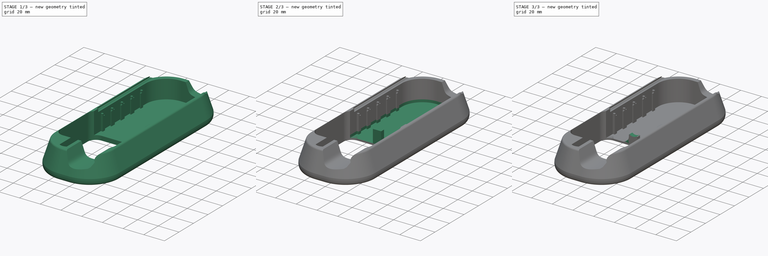
[diagram: build sequence overview — one tinted view per stage of 3, left to right]
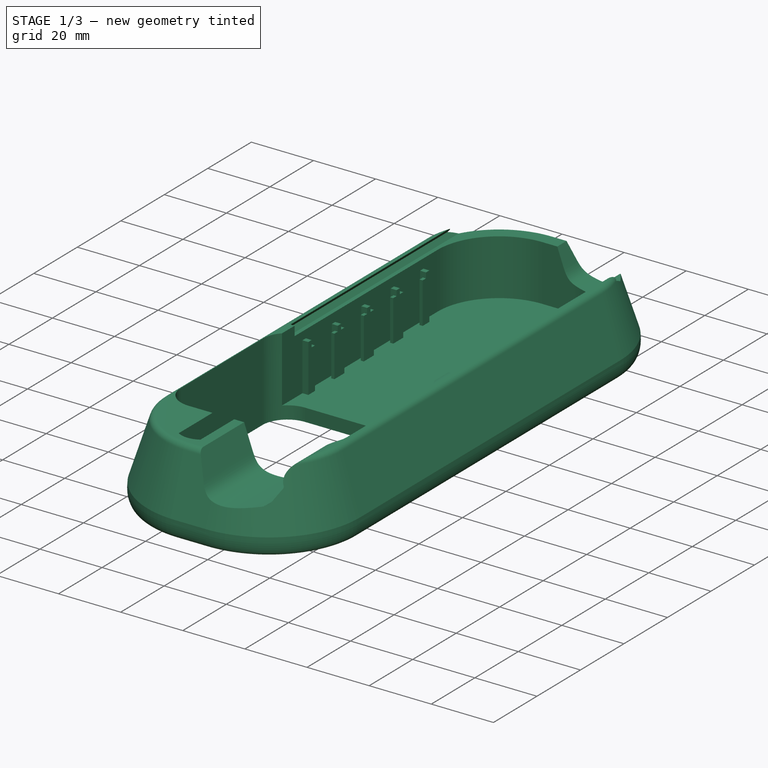
[diagram: stage 1 of 3 — iso view after this stage's code; geometry added in this stage tinted green]
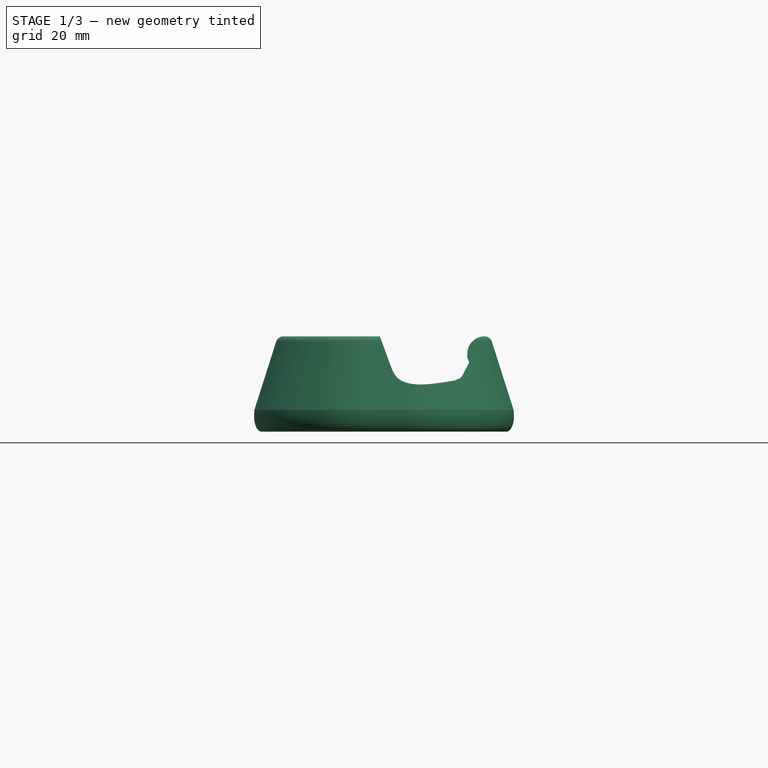
[diagram: stage 1 of 3 — front view after this stage's code; geometry added in this stage tinted green]
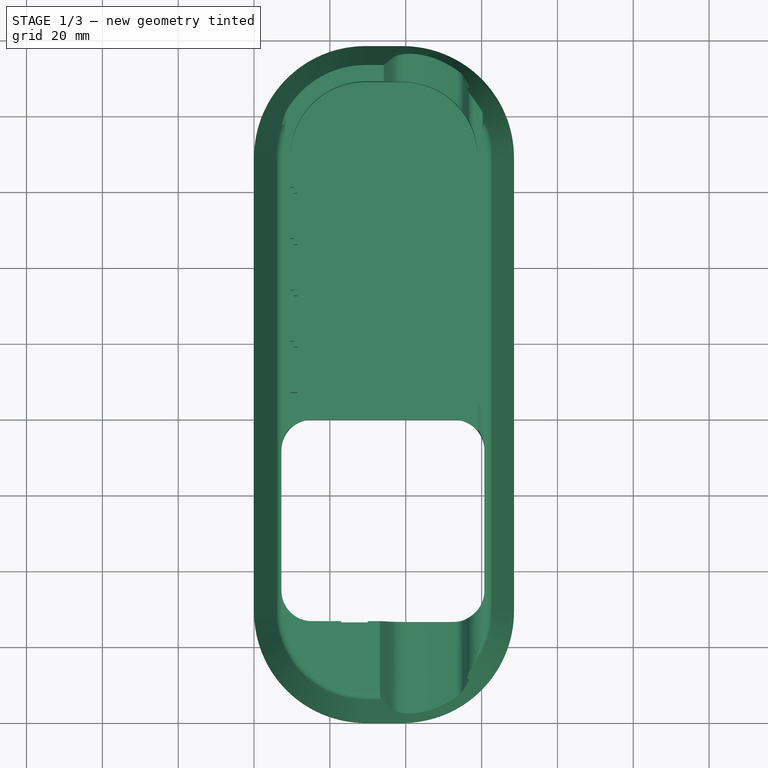
[diagram: stage 1 of 3 — top view after this stage's code; geometry added in this stage tinted green]
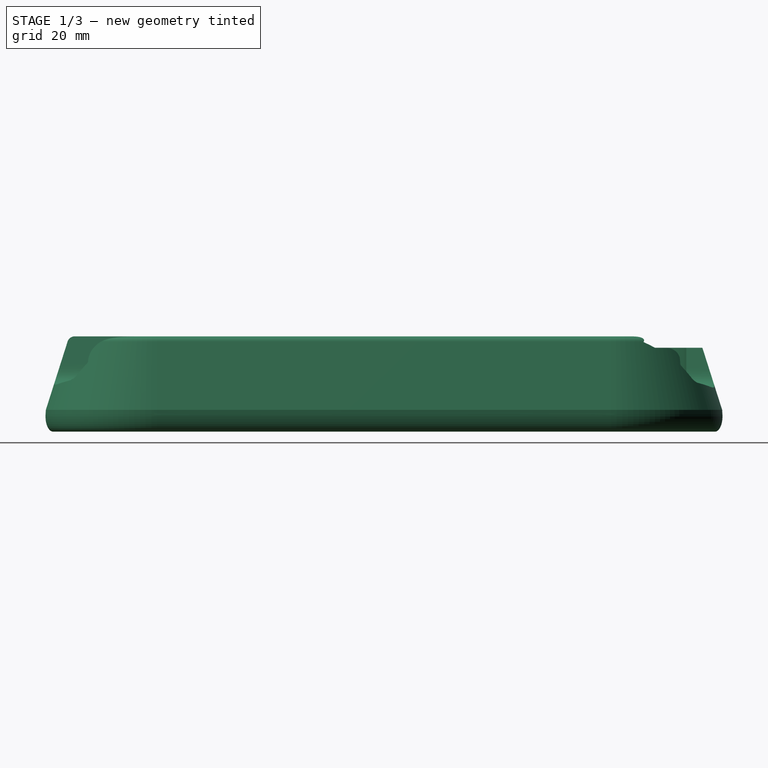
[diagram: stage 1 of 3 — right view after this stage's code; geometry added in this stage tinted green]
FCSTD DOCUMENT  (FreeCAD 0.20R29177 +233 (Git))
Label: steambox-xl-remix
License: All rights reserved
LicenseURL: http://en.wikipedia.org/wiki/All_rights_reserved
objects: Sketcher::SketchObject×3, PartDesign::Pocket×3, PartDesign::Pad×2, PartDesign::Fillet×2, Part::Feature×1, Part::Refine×1, PartDesign::FeatureBase×1, PartDesign::Plane×1, PartDesign::Body×1
note: 22 computed .brp shape members not serialized (recipe doc carries the construction recipe); baked Part::Feature solids carry a one-line shape summary decoded from their .brp

FEATURE [Part::Feature] steambox_stand_slightly_larger001_solid  label="steambox_stand_slightly_larger001 (Solid)"
  shape: bbox 68.53 x 178.5 x 25.15 mm, 7798 faces (baked)
FEATURE [Part::Refine] steambox_stand_slightly_larger001_solid001  label="steambox_stand_slightly_larger001 (Solid)001"
  Source = -> steambox_stand_slightly_larger001_solid
FEATURE [PartDesign::FeatureBase] BaseFeature
  BaseFeature = -> steambox_stand_slightly_larger001_solid001
FEATURE [PartDesign::Pad] Pad
  BaseFeature = -> BaseFeature
  Direction = (0,0,1)
  Length = 10
  Length2 = 10
  Profile = -> BaseFeature [Face3538]
  Type = 3
  UpToFace = -> BaseFeature [Face3429]
FEATURE [Sketcher::SketchObject] Sketch001
  ExternalGeometry = -> [Pad]
  FullyConstrained = true
  MapMode = 5
  Placement = pos=(0,0,22) rot=(0,0,1;0rad)
  Support = -> [Pad]
  sketch-geometry (7):
    g0: LineSegment StartX=30 StartY=26.5 StartZ=0 EndX=23 EndY=26.5 EndZ=0
    g1: LineSegment StartX=23 StartY=26.5 StartZ=0 EndX=23 EndY=11 EndZ=0
    g2: LineSegment StartX=23 StartY=11 StartZ=0 EndX=30 EndY=11 EndZ=0
    g3: LineSegment StartX=30 StartY=11 StartZ=0 EndX=30 EndY=26.5 EndZ=0
    g4: ArcOfCircle CenterX=26.5 CenterY=16.625 CenterZ=0 NormalX=0 NormalY=0 NormalZ=1 AngleXU=0 Radius=6.625 StartAngle=4.15579 EndAngle=5.26899
    g5: GeomPoint X=26.5 Y=11 Z=0
    g6: LineSegment StartX=26.5 StartY=11 StartZ=0 EndX=26.5 EndY=10 EndZ=0
  constraints (18):
    c: Coincident(g0,g1)
    c: Coincident(g1,g2)
    c: Coincident(g2,g3)
    c: Coincident(g3,g0)
    c: Horizontal(g0)
    c: Horizontal(g2)
    c: Vertical(g1)
    c: Vertical(g3)
    c: Coincident(g0,g-4)
    c: DistanceX(g2,g2) = 7
    c: Coincident(g4,g3)
    c: Coincident(g4,g1)
    c: Symmetric(g1,g3,g5)
    c: Coincident(g6,g5)
    c: PointOnObject(g6,g4)
    c: Vertical(g6)
    c: DistanceY(g1,g1) = 15.5
    c: DistanceY(g6,g6) = 1
FEATURE [PartDesign::Plane] DatumPlane
  Length = 121.124
  MapMode = 5
  Placement = pos=(0,0,4) rot=(0,0,1;0rad)
  ResizeMode = 0
  Support = -> [BaseFeature]
  Width = 231.124
FEATURE [PartDesign::Pocket] Pocket002
  BaseFeature = -> Pad
  Direction = (0,0,-1)
  Length = 0
  Length2 = 5
  Profile = -> Sketch001
  ReferenceAxis = -> Sketch001 [N_Axis]
  Type = 3
  UpToFace = -> DatumPlane
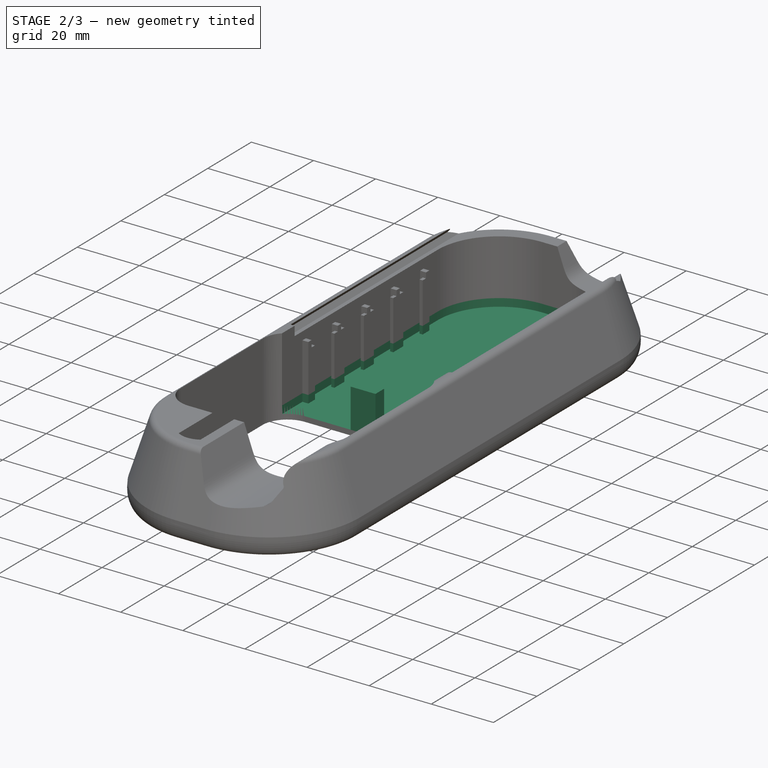
[diagram: stage 2 of 3 — iso view after this stage's code; geometry added in this stage tinted green]
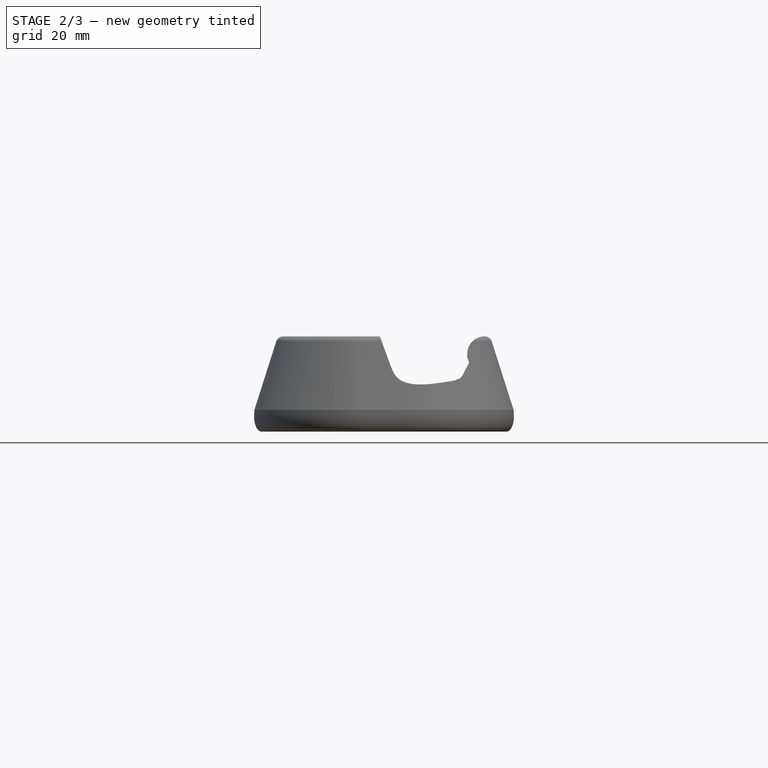
[diagram: stage 2 of 3 — front view after this stage's code; geometry added in this stage tinted green]
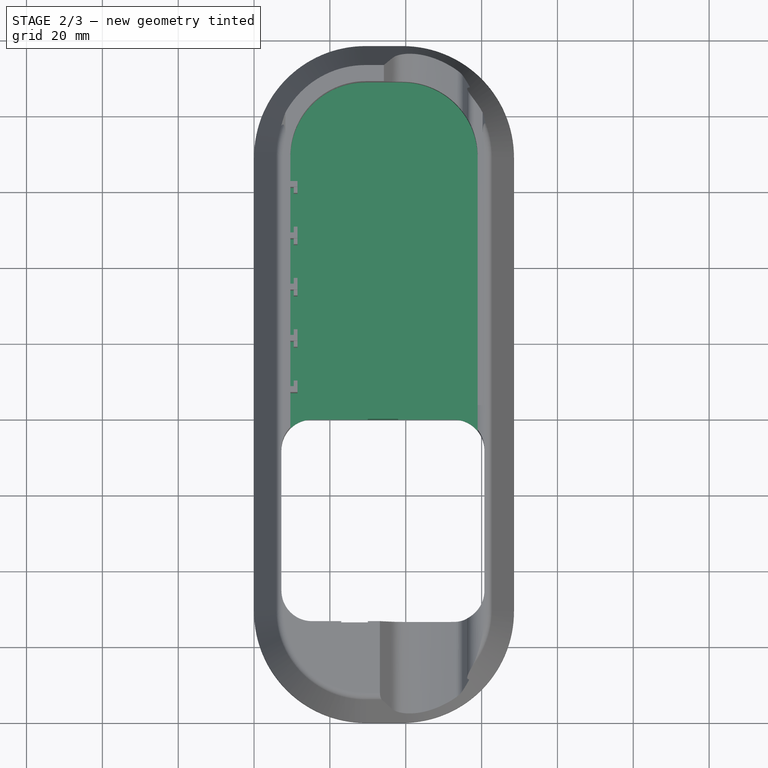
[diagram: stage 2 of 3 — top view after this stage's code; geometry added in this stage tinted green]
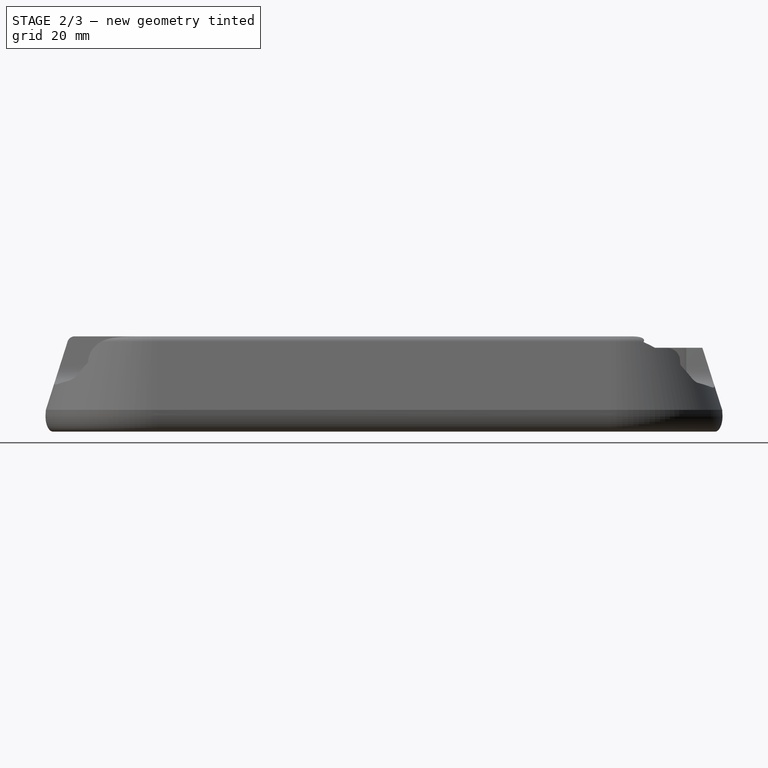
[diagram: stage 2 of 3 — right view after this stage's code; geometry added in this stage tinted green]
FEATURE [PartDesign::Pocket] Pocket
  BaseFeature = -> Pocket002
  Direction = (0,0,-1)
  Length = 2.5
  Length2 = 5
  Profile = -> Pocket002 [Face28]
  Type = 0
FEATURE [Sketcher::SketchObject] Sketch
  ExternalGeometry = -> [Pocket]
  FullyConstrained = true
  MapMode = 5
  Placement = pos=(0,0,-3.14537) rot=(1,0,0;3.14159rad)
  Support = -> [Pocket]
  sketch-geometry (5):
    g0: LineSegment StartX=29.98 StartY=-80.03 StartZ=0 EndX=37.98 EndY=-80.03 EndZ=0
    g1: LineSegment StartX=37.98 StartY=-80.03 StartZ=0 EndX=37.98 EndY=-84.03 EndZ=0
    g2: LineSegment StartX=37.98 StartY=-84.03 StartZ=0 EndX=29.98 EndY=-84.03 EndZ=0
    g3: LineSegment StartX=29.98 StartY=-84.03 StartZ=0 EndX=29.98 EndY=-80.03 EndZ=0
    g4: GeomPoint X=33.98 Y=-80.03 Z=0
  constraints (12):
    c: Coincident(g0,g1)
    c: Coincident(g1,g2)
    c: Coincident(g2,g3)
    c: Coincident(g3,g0)
    c: Horizontal(g0)
    c: Horizontal(g2)
    c: Vertical(g1)
    c: Vertical(g3)
    c: Symmetric(g-3,g-3,g4)
    c: Symmetric(g0,g0,g4)
    c: DistanceX(g0,g0) = 8
    c: DistanceY(g1,g1) = 4
FEATURE [PartDesign::Pad] Pad001
  BaseFeature = -> Pocket
  Direction = (0,0,-1)
  Length = 14.2
  Length2 = 10
  Profile = -> Sketch
  ReferenceAxis = -> Sketch [N_Axis]
  Reversed = true
  Type = 0
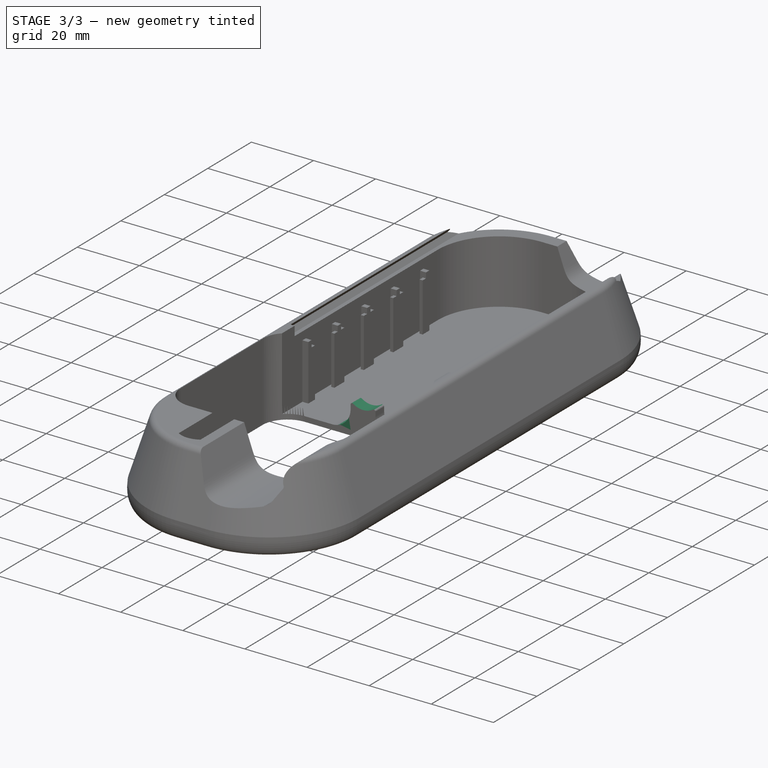
[diagram: stage 3 of 3 — iso view after this stage's code; geometry added in this stage tinted green]
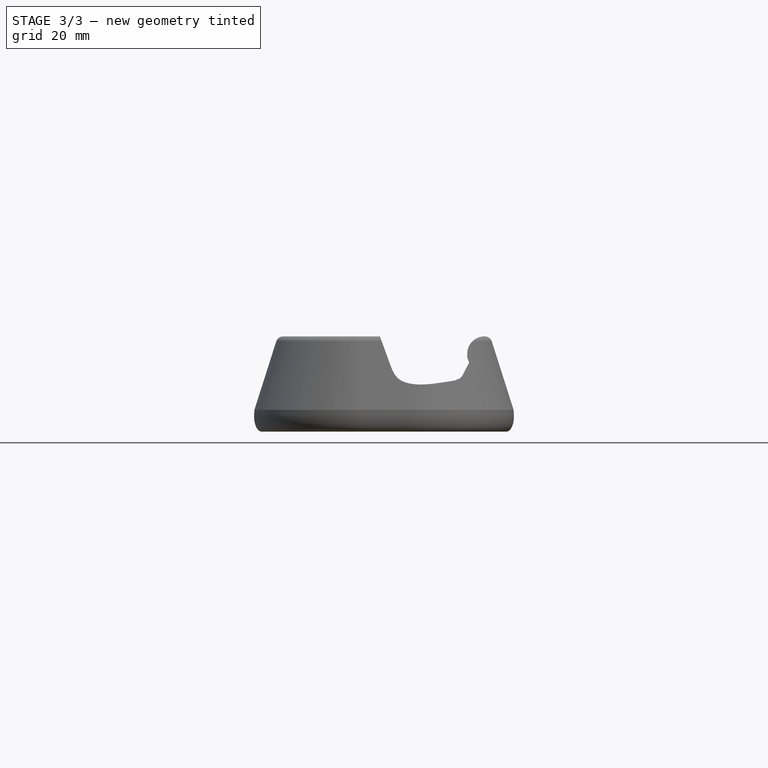
[diagram: stage 3 of 3 — front view after this stage's code; geometry added in this stage tinted green]
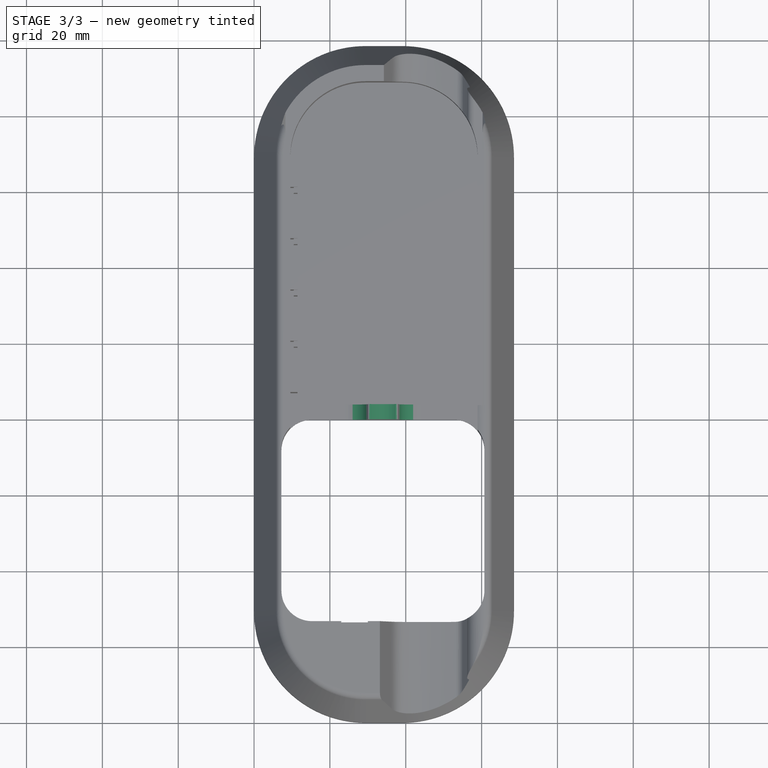
[diagram: stage 3 of 3 — top view after this stage's code; geometry added in this stage tinted green]
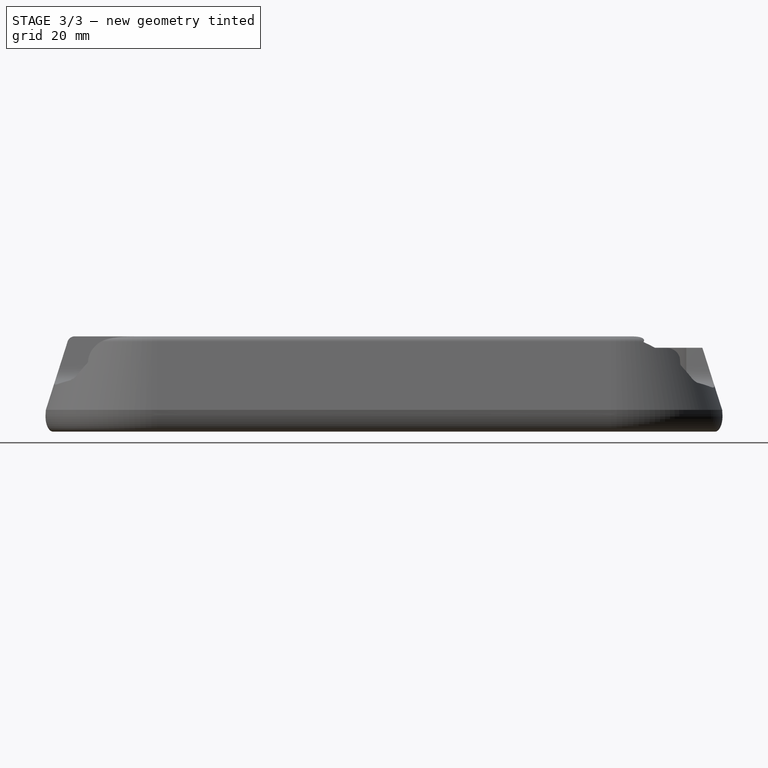
[diagram: stage 3 of 3 — right view after this stage's code; geometry added in this stage tinted green]
FEATURE [Sketcher::SketchObject] Sketch002
  ExternalGeometry = -> [Pad001]
  FullyConstrained = true
  MapMode = 5
  Placement = pos=(0,80.03,0) rot=(1,0,0;1.5708rad)
  Support = -> [Pad001]
  sketch-geometry (1):
    g0: Circle CenterX=33.98 CenterY=11.0546 CenterZ=0 NormalX=0 NormalY=0 NormalZ=1 AngleXU=0 Radius=5.75
  constraints (2):
    c: Symmetric(g-3,g-3,g0)
    c: Diameter(g0) = 11.5
FEATURE [PartDesign::Pocket] Pocket003
  BaseFeature = -> Pad001
  Direction = (0,1,-2e-16)
  Length = 5
  Length2 = 5
  Profile = -> Sketch002
  ReferenceAxis = -> Sketch002 [N_Axis]
  TaperAngle = 24
  Type = 2
FEATURE [PartDesign::Fillet] Fillet
  Base = -> Pocket003 [Edge303,Edge301]
  BaseFeature = -> Pocket003
  Radius = 6
  SupportTransform = false
  UseAllEdges = false
FEATURE [PartDesign::Fillet] Fillet001
  Base = -> Fillet [Edge683,Edge682]
  BaseFeature = -> Fillet
  Radius = 0.5
  SupportTransform = false
  UseAllEdges = false
FEATURE [PartDesign::Body] Body
  BaseFeature = -> steambox_stand_slightly_larger001_solid001
  Group = -> [BaseFeature,DatumPlane,Pad,Sketch001,Pocket002,Pocket,Sketch,Pad001,Sketch002,Pocket003,Fillet,Fillet001]
  Origin = -> Origin
  Tip = -> Fillet001
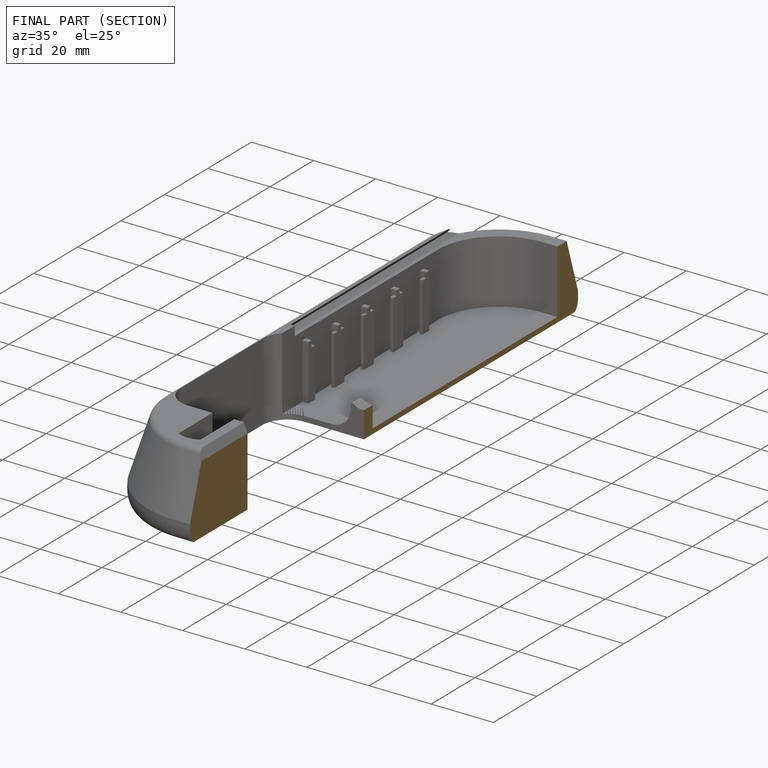
[diagram: finished part — half-section view (interior)]
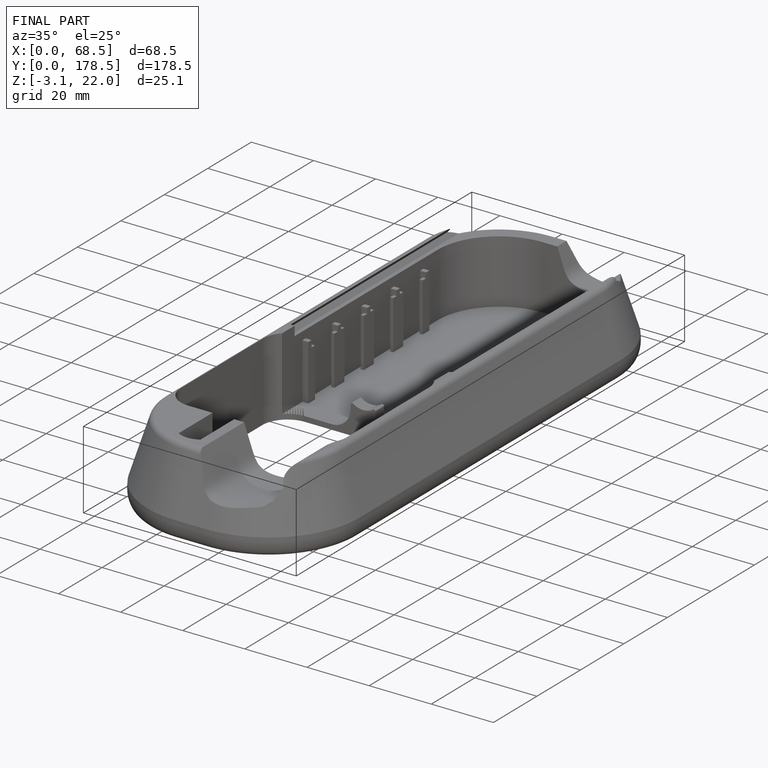
[diagram: finished part — iso view with bounding-box wireframe]
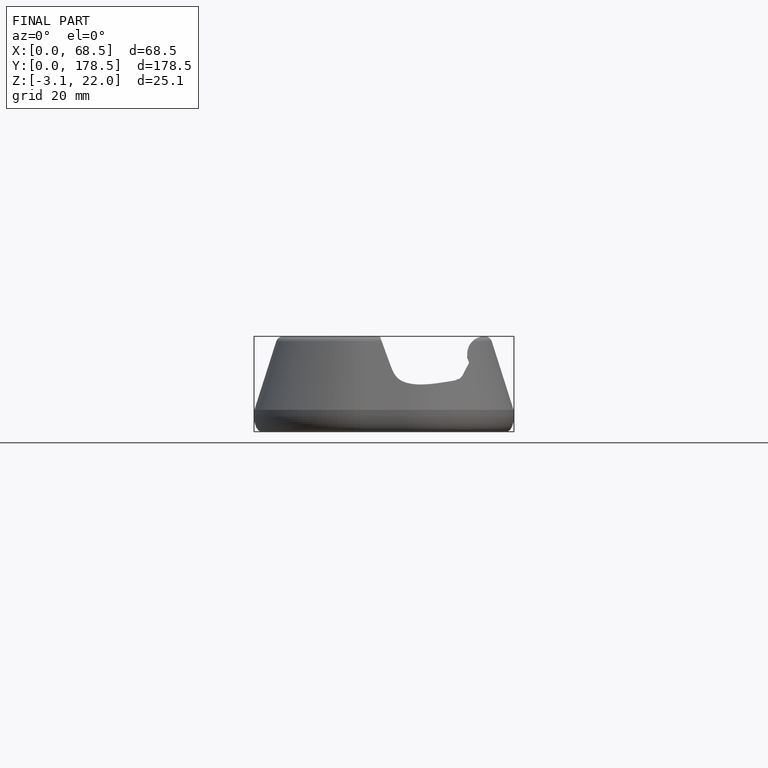
[diagram: finished part — front view with bounding-box wireframe]
